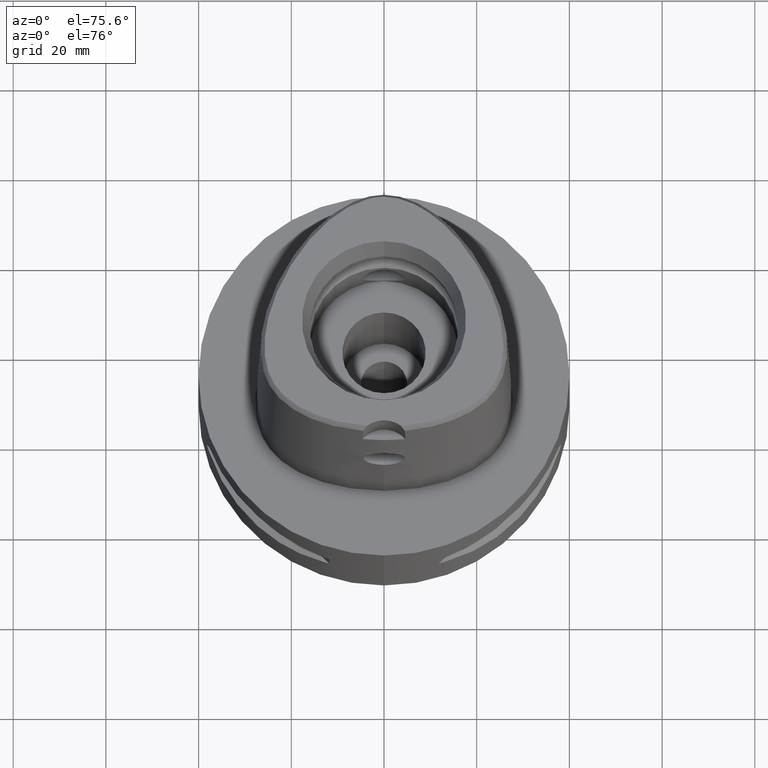
[diagram: clean part render]
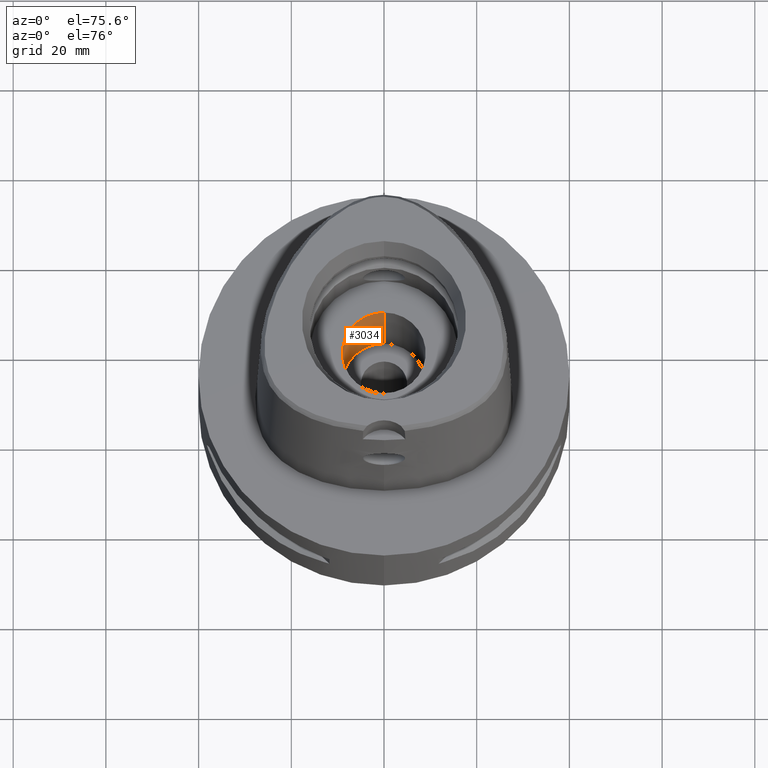
[diagram: same view with one face highlighted and labeled with its STEP entity id]
A machine part, auxiliary view. The second image highlights one B-rep face of the part: STEP entity #3034.
In plain terms, the highlighted cylindrical surface (partial cylindrical patch) has radius 9 mm, axis along (0, 0, -1).
Its self-contained STEP definition (entity closure, byte-faithful):
#813=CARTESIAN_POINT('',(0.E0,0.E0,-7.E0));
#814=DIRECTION('',(0.E0,0.E0,-1.E0));
#815=DIRECTION('',(0.E0,-1.E0,0.E0));
#816=AXIS2_PLACEMENT_3D('',#813,#814,#815);
#845=DIRECTION('',(0.E0,0.E0,-1.E0));
#846=VECTOR('',#845,2.7E1);
#847=CARTESIAN_POINT('',(0.E0,-9.E0,2.E1));
#848=LINE('',#847,#846);
#852=DIRECTION('',(0.E0,0.E0,1.E0));
#853=VECTOR('',#852,2.7E1);
#854=CARTESIAN_POINT('',(0.E0,9.E0,-7.E0));
#855=LINE('',#854,#853);
#875=CARTESIAN_POINT('',(0.E0,0.E0,2.E1));
#876=DIRECTION('',(0.E0,0.E0,1.E0));
#877=DIRECTION('',(0.E0,1.E0,0.E0));
#878=AXIS2_PLACEMENT_3D('',#875,#876,#877);
#1826=CARTESIAN_POINT('',(0.E0,-9.E0,-7.E0));
#1827=CARTESIAN_POINT('',(0.E0,9.E0,-7.E0));
#1828=VERTEX_POINT('',#1826);
#1829=VERTEX_POINT('',#1827);
#1830=CARTESIAN_POINT('',(0.E0,9.E0,2.E1));
#1831=VERTEX_POINT('',#1830);
#1832=CARTESIAN_POINT('',(0.E0,-9.E0,2.E1));
#1833=VERTEX_POINT('',#1832);
#3020=CARTESIAN_POINT('',(0.E0,0.E0,5.04E1));
#3021=DIRECTION('',(0.E0,0.E0,-1.E0));
#3022=DIRECTION('',(0.E0,-1.E0,0.E0));
#3023=AXIS2_PLACEMENT_3D('',#3020,#3021,#3022);
#3024=CYLINDRICAL_SURFACE('',#3023,9.E0);
#3026=ORIENTED_EDGE('',*,*,#3025,.F.);
#3027=ORIENTED_EDGE('',*,*,#3009,.F.);
#3029=ORIENTED_EDGE('',*,*,#3028,.F.);
#3031=ORIENTED_EDGE('',*,*,#3030,.F.);
#3032=EDGE_LOOP('',(#3026,#3027,#3029,#3031));
#3033=FACE_OUTER_BOUND('',#3032,.F.);
#817=CIRCLE('',#816,9.E0);
#879=CIRCLE('',#878,9.E0);
#3009=EDGE_CURVE('',#1828,#1829,#817,.T.);
#3025=EDGE_CURVE('',#1829,#1831,#855,.T.);
#3028=EDGE_CURVE('',#1833,#1828,#848,.T.);
#3030=EDGE_CURVE('',#1831,#1833,#879,.T.);
#3034=ADVANCED_FACE('',(#3033),#3024,.F.);